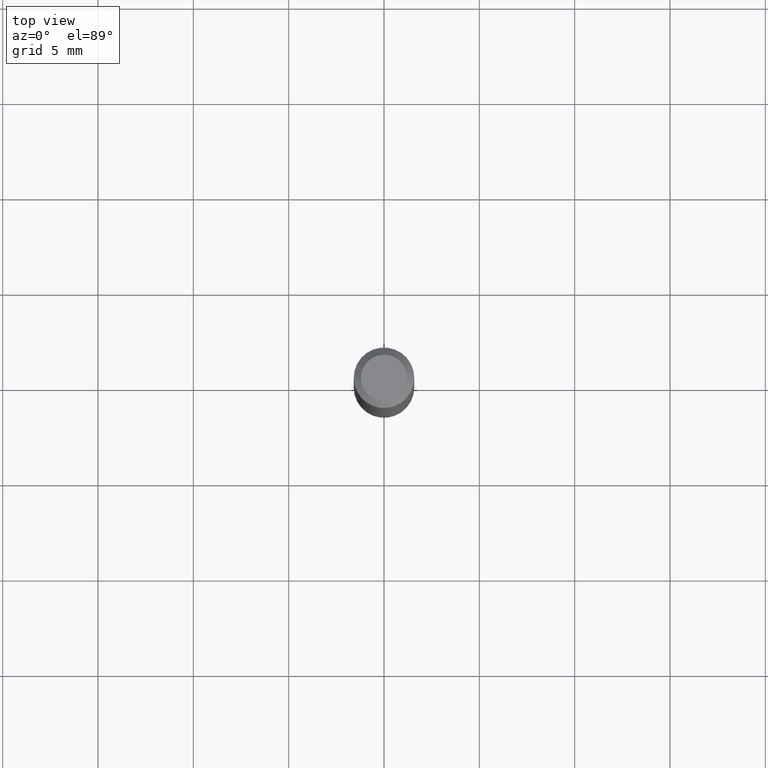
[diagram: clean part render]
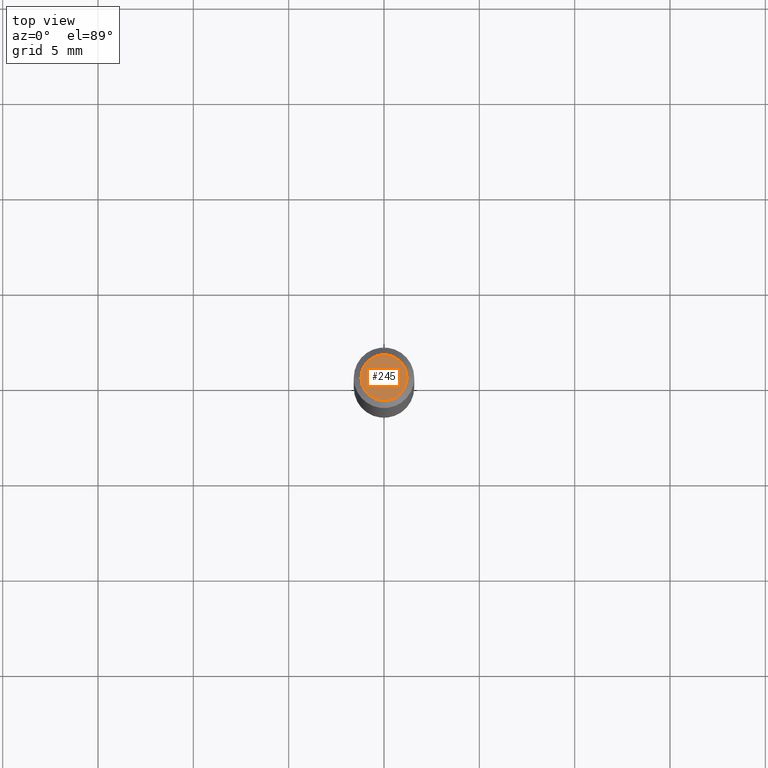
[diagram: same view with one face highlighted and labeled with its STEP entity id]
A machine part, top view. The second image highlights one B-rep face of the part: STEP entity #245.
In plain terms, the highlighted planar face has unit normal (0, -0, -1).
Its self-contained STEP definition (entity closure, byte-faithful):
#3 = EDGE_LOOP ( 'NONE', ( #287, #20 ) ) ;
#12 = DIRECTION ( 'NONE',  ( 1.000000000000000000, -6.982962677686267499E-15, 4.852736867747366768E-29 ) ) ;
#16 = VERTEX_POINT ( 'NONE', #59 ) ;
#20 = ORIENTED_EDGE ( 'NONE', *, *, #99, .T. ) ;
#35 = DIRECTION ( 'NONE',  ( 2.438088387897960049E-29, -3.491481338843145188E-15, -1.000000000000000000 ) ) ;
#58 = PLANE ( 'NONE',  #83 ) ;
#59 = CARTESIAN_POINT ( 'NONE',  ( -0.04749999999999999362, 3.578768372314206562E-16, -2.310480929501438287E-16 ) ) ;
#83 = AXIS2_PLACEMENT_3D ( 'NONE', #196, #35, #438 ) ;
#90 = AXIS2_PLACEMENT_3D ( 'NONE', #220, #310, #424 ) ;
#95 = FACE_OUTER_BOUND ( 'NONE', #3, .T. ) ;
#99 = EDGE_CURVE ( 'NONE', #372, #16, #172, .T. ) ;
#142 = CARTESIAN_POINT ( 'NONE',  ( 5.650209040381348270E-45, -8.067001049107153434E-31, -2.310480929501414128E-16 ) ) ;
#172 = CIRCLE ( 'NONE', #90, 0.04749999999999999362 ) ;
#196 = CARTESIAN_POINT ( 'NONE',  ( 3.316907271900976096E-16, 0.04749999999999999362, -2.813694100701201521E-16 ) ) ;
#220 = CARTESIAN_POINT ( 'NONE',  ( 5.650209040381348270E-45, -8.067001049107153434E-31, -2.310480929501414128E-16 ) ) ;
#225 = DIRECTION ( 'NONE',  ( -2.445468806185136597E-29, 3.491481338843145583E-15, 1.000000000000000000 ) ) ;
#245 = ADVANCED_FACE ( 'NONE', ( #95 ), #58, .F. ) ;
#287 = ORIENTED_EDGE ( 'NONE', *, *, #322, .T. ) ;
#310 = DIRECTION ( 'NONE',  ( -2.445468806185136597E-29, 3.491481338843145583E-15, 1.000000000000000000 ) ) ;
#322 = EDGE_CURVE ( 'NONE', #16, #372, #335, .T. ) ;
#335 = CIRCLE ( 'NONE', #443, 0.04749999999999999362 ) ;
#363 = CARTESIAN_POINT ( 'NONE',  ( 0.04749999999999999362, -4.035134999187582567E-16, -2.310480929501388490E-16 ) ) ;
#372 = VERTEX_POINT ( 'NONE', #363 ) ;
#424 = DIRECTION ( 'NONE',  ( 1.000000000000000000, -6.982962677686267499E-15, 4.852736867747366768E-29 ) ) ;
#438 = DIRECTION ( 'NONE',  ( -1.000000000000000000, 6.982962677686265922E-15, -4.876176775795935793E-29 ) ) ;
#443 = AXIS2_PLACEMENT_3D ( 'NONE', #142, #225, #12 ) ;